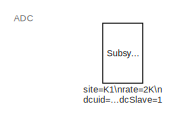
[diagram: root canvas - part 1/3, top center region]
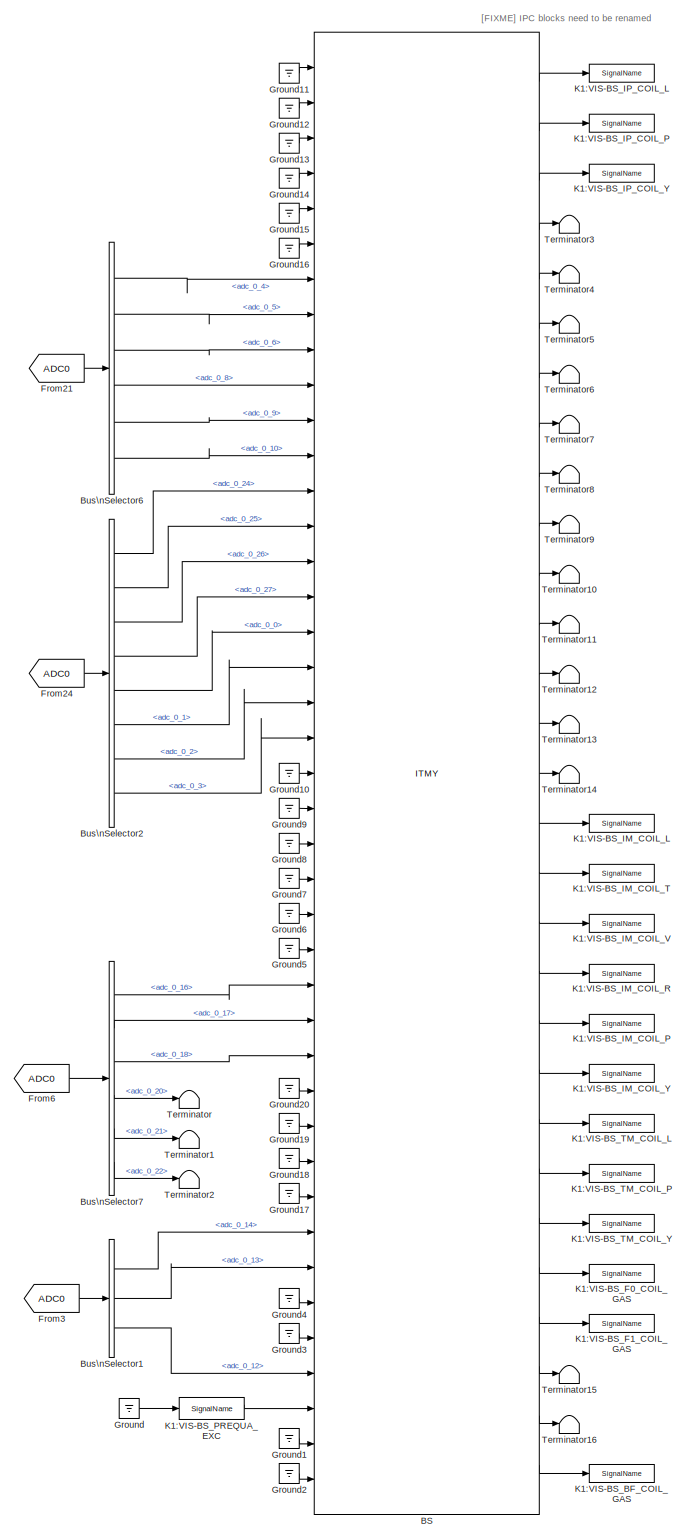
[diagram: root canvas - part 2/3, center side, full height]
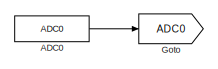
[diagram: root canvas - part 3/3, middle left region]
MODEL k1modalbs
KIND model
BLOCK [Reference] ADC0  REF=cdsAdcx0/ADC0
  AttributesFormatString = %<Description>\\n%<Tag>
  Description = type-GSC_16AI64SSA\ncard_num=0
  Ports = [0, 1]
  SID = 5745
  SourceBlock = cdsAdcx0/ADC0
  SourceType = SubSystem
  Tag = cdsAdc
BLOCK [Reference] BS  REF=VISMODAL_MASTER/ITMY
  Ports = [41, 29]
  SID = 5742
  SourceBlock = VISMODAL_MASTER/ITMY
  SourceType = SubSystem
BLOCK [BusSelector] Bus\nSelector1
  AttributesFormatString = %<Description>
  Description = ADC Selector
  OutputSignals = adc_0_14,adc_0_13,adc_0_12
  Ports = [1, 3]
  SID = 5753
BLOCK [BusSelector] Bus\nSelector2
  AttributesFormatString = %<Description>
  Description = ADC Selector
  OutputSignals = adc_0_24,adc_0_25,adc_0_26,adc_0_27,adc_0_0,adc_0_1,adc_0_2,adc_0_3
  Ports = [1, 8]
  SID = 5749
BLOCK [BusSelector] Bus\nSelector6
  AttributesFormatString = %<Description>
  Description = ADC Selector
  OutputSignals = adc_0_4,adc_0_5,adc_0_6,adc_0_8,adc_0_9,adc_0_10
  Ports = [1, 6]
  SID = 5747
BLOCK [BusSelector] Bus\nSelector7
  AttributesFormatString = %<Description>
  Description = ADC Selector
  OutputSignals = adc_0_16,adc_0_17,adc_0_18,adc_0_20,adc_0_21,adc_0_22
  Ports = [1, 6]
  SID = 5754
BLOCK [From] From21
  GotoTag = ADC0
  SID = 5748
BLOCK [From] From24
  GotoTag = ADC0
  SID = 5750
BLOCK [From] From3
  GotoTag = ADC0
  SID = 5755
BLOCK [From] From6
  GotoTag = ADC0
  SID = 5756
BLOCK [Goto] Goto
  GotoTag = ADC0
  SID = 5746
BLOCK [Ground] Ground
  SID = 5735
BLOCK [Ground] Ground1
  SID = 5743
BLOCK [Ground] Ground10
  SID = 5767
BLOCK [Ground] Ground11
  SID = 5768
BLOCK [Ground] Ground12
  SID = 5769
BLOCK [Ground] Ground13
  SID = 5770
BLOCK [Ground] Ground14
  SID = 5771
BLOCK [Ground] Ground15
  SID = 5772
BLOCK [Ground] Ground16
  SID = 5773
BLOCK [Ground] Ground17
  SID = 5774
BLOCK [Ground] Ground18
  SID = 5775
BLOCK [Ground] Ground19
  SID = 5776
BLOCK [Ground] Ground2
  SID = 5744
BLOCK [Ground] Ground20
  SID = 5777
BLOCK [Ground] Ground3
  SID = 5760
BLOCK [Ground] Ground4
  SID = 5761
BLOCK [Ground] Ground5
  SID = 5762
BLOCK [Ground] Ground6
  SID = 5763
BLOCK [Ground] Ground7
  SID = 5764
BLOCK [Ground] Ground8
  SID = 5765
BLOCK [Ground] Ground9
  SID = 5766
BLOCK [Reference] K1:VIS-BS_BF_COIL_GAS  REF=cdsIPCx/SignalName
  AttributesFormatString = %<Tag>
  Description = Inter-Process Communication via Shared memory.
  Ports = [1, 2]
  SID = 5546
  SourceBlock = cdsIPCx/SignalName
  SourceType = SubSystem
  Tag = cdsIPCx_SHMEM
BLOCK [Reference] K1:VIS-BS_F0_COIL_GAS  REF=cdsIPCx/SignalName
  AttributesFormatString = %<Tag>
  Description = Inter-Process Communication via Shared memory.
  Ports = [1, 2]
  SID = 5540
  SourceBlock = cdsIPCx/SignalName
  SourceType = SubSystem
  Tag = cdsIPCx_SHMEM
BLOCK [Reference] K1:VIS-BS_F1_COIL_GAS  REF=cdsIPCx/SignalName
  AttributesFormatString = %<Tag>
  Description = Inter-Process Communication via Shared memory.
  Ports = [1, 2]
  SID = 5543
  SourceBlock = cdsIPCx/SignalName
  SourceType = SubSystem
  Tag = cdsIPCx_SHMEM
BLOCK [Reference] K1:VIS-BS_IM_COIL_L  REF=cdsIPCx/SignalName
  AttributesFormatString = %<Tag>
  Description = Inter-Process Communication via Shared memory.
  Ports = [1, 2]
  SID = 2321
  SourceBlock = cdsIPCx/SignalName
  SourceType = SubSystem
  Tag = cdsIPCx_SHMEM
BLOCK [Reference] K1:VIS-BS_IM_COIL_P  REF=cdsIPCx/SignalName
  AttributesFormatString = %<Tag>
  Description = Inter-Process Communication via Shared memory.
  Ports = [1, 2]
  SID = 2325
  SourceBlock = cdsIPCx/SignalName
  SourceType = SubSystem
  Tag = cdsIPCx_SHMEM
BLOCK [Reference] K1:VIS-BS_IM_COIL_R  REF=cdsIPCx/SignalName
  AttributesFormatString = %<Tag>
  Description = Inter-Process Communication via Shared memory.
  Ports = [1, 2]
  SID = 2324
  SourceBlock = cdsIPCx/SignalName
  SourceType = SubSystem
  Tag = cdsIPCx_SHMEM
BLOCK [Reference] K1:VIS-BS_IM_COIL_T  REF=cdsIPCx/SignalName
  AttributesFormatString = %<Tag>
  Description = Inter-Process Communication via Shared memory.
  Ports = [1, 2]
  SID = 2322
  SourceBlock = cdsIPCx/SignalName
  SourceType = SubSystem
  Tag = cdsIPCx_SHMEM
BLOCK [Reference] K1:VIS-BS_IM_COIL_V  REF=cdsIPCx/SignalName
  AttributesFormatString = %<Tag>
  Description = Inter-Process Communication via Shared memory.
  Ports = [1, 2]
  SID = 2323
  SourceBlock = cdsIPCx/SignalName
  SourceType = SubSystem
  Tag = cdsIPCx_SHMEM
BLOCK [Reference] K1:VIS-BS_IM_COIL_Y  REF=cdsIPCx/SignalName
  AttributesFormatString = %<Tag>
  Description = Inter-Process Communication via Shared memory.
  Ports = [1, 2]
  SID = 2326
  SourceBlock = cdsIPCx/SignalName
  SourceType = SubSystem
  Tag = cdsIPCx_SHMEM
BLOCK [Reference] K1:VIS-BS_IP_COIL_L  REF=cdsIPCx/SignalName
  AttributesFormatString = %<Tag>
  Description = Inter-Process Communication via Shared memory.
  Ports = [1, 2]
  SID = 2331
  SourceBlock = cdsIPCx/SignalName
  SourceType = SubSystem
  Tag = cdsIPCx_SHMEM
BLOCK [Reference] K1:VIS-BS_IP_COIL_P  REF=cdsIPCx/SignalName
  AttributesFormatString = %<Tag>
  Description = Inter-Process Communication via Shared memory.
  Ports = [1, 2]
  SID = 2332
  SourceBlock = cdsIPCx/SignalName
  SourceType = SubSystem
  Tag = cdsIPCx_SHMEM
BLOCK [Reference] K1:VIS-BS_IP_COIL_Y  REF=cdsIPCx/SignalName
  AttributesFormatString = %<Tag>
  Description = Inter-Process Communication via Shared memory.
  Ports = [1, 2]
  SID = 2333
  SourceBlock = cdsIPCx/SignalName
  SourceType = SubSystem
  Tag = cdsIPCx_SHMEM
BLOCK [Reference] K1:VIS-BS_PREQUA_EXC  REF=cdsIPCx/SignalName
  AttributesFormatString = %<Tag>
  Description = Inter-Process Communication via Shared memory.
  Ports = [1, 2]
  SID = 5734
  SourceBlock = cdsIPCx/SignalName
  SourceType = SubSystem
  Tag = cdsIPCx_SHMEM
BLOCK [Reference] K1:VIS-BS_TM_COIL_L  REF=cdsIPCx/SignalName
  AttributesFormatString = %<Tag>
  Description = Inter-Process Communication via Shared memory.
  Ports = [1, 2]
  SID = 2327
  SourceBlock = cdsIPCx/SignalName
  SourceType = SubSystem
  Tag = cdsIPCx_SHMEM
BLOCK [Reference] K1:VIS-BS_TM_COIL_P  REF=cdsIPCx/SignalName
  AttributesFormatString = %<Tag>
  Description = Inter-Process Communication via Shared memory.
  Ports = [1, 2]
  SID = 2328
  SourceBlock = cdsIPCx/SignalName
  SourceType = SubSystem
  Tag = cdsIPCx_SHMEM
BLOCK [Reference] K1:VIS-BS_TM_COIL_Y  REF=cdsIPCx/SignalName
  AttributesFormatString = %<Tag>
  Description = Inter-Process Communication via Shared memory.
  Ports = [1, 2]
  SID = 2329
  SourceBlock = cdsIPCx/SignalName
  SourceType = SubSystem
  Tag = cdsIPCx_SHMEM
BLOCK [Terminator] Terminator
  SID = 5757
BLOCK [Terminator] Terminator1
  SID = 5758
BLOCK [Terminator] Terminator10
  SID = 5795
BLOCK [Terminator] Terminator11
  SID = 5796
BLOCK [Terminator] Terminator12
  SID = 5797
BLOCK [Terminator] Terminator13
  SID = 5798
BLOCK [Terminator] Terminator14
  SID = 5799
BLOCK [Terminator] Terminator15
  SID = 5800
BLOCK [Terminator] Terminator16
  SID = 5801
BLOCK [Terminator] Terminator2
  SID = 5759
BLOCK [Terminator] Terminator3
  SID = 5778
BLOCK [Terminator] Terminator4
  SID = 5779
BLOCK [Terminator] Terminator5
  SID = 5780
BLOCK [Terminator] Terminator6
  SID = 5785
BLOCK [Terminator] Terminator7
  SID = 5786
BLOCK [Terminator] Terminator8
  SID = 5787
BLOCK [Terminator] Terminator9
  SID = 5794
BLOCK [Reference] site=K1\nrate=2K\ndcuid=62\nhost=k1bs\nspecific_cpu=4\nadcSlave=1  REF=cdsParameters/Subsystem
  AttributesFormatString = %<Tag>
  Description = Purpose:                                                                                                                                                                                                                                \nProvide system parameters to the FE code generator to properly configure the generated EPICS names, rep rate of the FE controller, and the Data Acquisition node ID fo...<+2934ch>
  Ports = []
  SID = 3
  SourceBlock = cdsParameters/Subsystem
  SourceType = SubSystem
  Tag = cdsParameters
ANNOTATION (root): \n \n ADC
ANNOTATION (root): \n \n [FIXME] IPC blocks need to be renamed
LINE ADC0:1 -> Goto:1
LINE BS:1 -> K1:VIS-BS_IP_COIL_L:1
LINE BS:10 -> Terminator9:1
LINE BS:11 -> Terminator10:1
LINE BS:12 -> Terminator11:1
LINE BS:13 -> Terminator12:1
LINE BS:14 -> Terminator13:1
LINE BS:15 -> Terminator14:1
LINE BS:16 -> K1:VIS-BS_IM_COIL_L:1
LINE BS:17 -> K1:VIS-BS_IM_COIL_T:1
LINE BS:18 -> K1:VIS-BS_IM_COIL_V:1
LINE BS:19 -> K1:VIS-BS_IM_COIL_R:1
LINE BS:2 -> K1:VIS-BS_IP_COIL_P:1
LINE BS:20 -> K1:VIS-BS_IM_COIL_P:1
LINE BS:21 -> K1:VIS-BS_IM_COIL_Y:1
LINE BS:22 -> K1:VIS-BS_TM_COIL_L:1
LINE BS:23 -> K1:VIS-BS_TM_COIL_P:1
LINE BS:24 -> K1:VIS-BS_TM_COIL_Y:1
LINE BS:25 -> K1:VIS-BS_F0_COIL_GAS:1
LINE BS:26 -> K1:VIS-BS_F1_COIL_GAS:1
LINE BS:27 -> Terminator15:1
LINE BS:28 -> Terminator16:1
LINE BS:29 -> K1:VIS-BS_BF_COIL_GAS:1
LINE BS:3 -> K1:VIS-BS_IP_COIL_Y:1
LINE BS:4 -> Terminator3:1
LINE BS:5 -> Terminator4:1
LINE BS:6 -> Terminator5:1
LINE BS:7 -> Terminator6:1
LINE BS:8 -> Terminator7:1
LINE BS:9 -> Terminator8:1
LINE Bus\nSelector1:1 -> BS:34
LINE Bus\nSelector1:2 -> BS:35
LINE Bus\nSelector1:3 -> BS:38
LINE Bus\nSelector2:1 -> BS:13
LINE Bus\nSelector2:2 -> BS:14
LINE Bus\nSelector2:3 -> BS:15
LINE Bus\nSelector2:4 -> BS:16
LINE Bus\nSelector2:5 -> BS:17
LINE Bus\nSelector2:6 -> BS:18
LINE Bus\nSelector2:7 -> BS:19
LINE Bus\nSelector2:8 -> BS:20
LINE Bus\nSelector6:1 -> BS:7
LINE Bus\nSelector6:2 -> BS:8
LINE Bus\nSelector6:3 -> BS:9
LINE Bus\nSelector6:4 -> BS:10
LINE Bus\nSelector6:5 -> BS:11
LINE Bus\nSelector6:6 -> BS:12
LINE Bus\nSelector7:1 -> BS:27
LINE Bus\nSelector7:2 -> BS:28
LINE Bus\nSelector7:3 -> BS:29
LINE Bus\nSelector7:4 -> Terminator:1
LINE Bus\nSelector7:5 -> Terminator1:1
LINE Bus\nSelector7:6 -> Terminator2:1
LINE From21:1 -> Bus\nSelector6:1
LINE From24:1 -> Bus\nSelector2:1
LINE From3:1 -> Bus\nSelector1:1
LINE From6:1 -> Bus\nSelector7:1
LINE Ground10:1 -> BS:21
LINE Ground11:1 -> BS:1
LINE Ground12:1 -> BS:2
LINE Ground13:1 -> BS:3
LINE Ground14:1 -> BS:4
LINE Ground15:1 -> BS:5
LINE Ground16:1 -> BS:6
LINE Ground17:1 -> BS:33
LINE Ground18:1 -> BS:32
LINE Ground19:1 -> BS:31
LINE Ground1:1 -> BS:40
LINE Ground20:1 -> BS:30
LINE Ground2:1 -> BS:41
LINE Ground3:1 -> BS:37
LINE Ground4:1 -> BS:36
LINE Ground5:1 -> BS:26
LINE Ground6:1 -> BS:25
LINE Ground7:1 -> BS:24
LINE Ground8:1 -> BS:23
LINE Ground9:1 -> BS:22
LINE Ground:1 -> K1:VIS-BS_PREQUA_EXC:1
LINE K1:VIS-BS_PREQUA_EXC:1 -> BS:39
